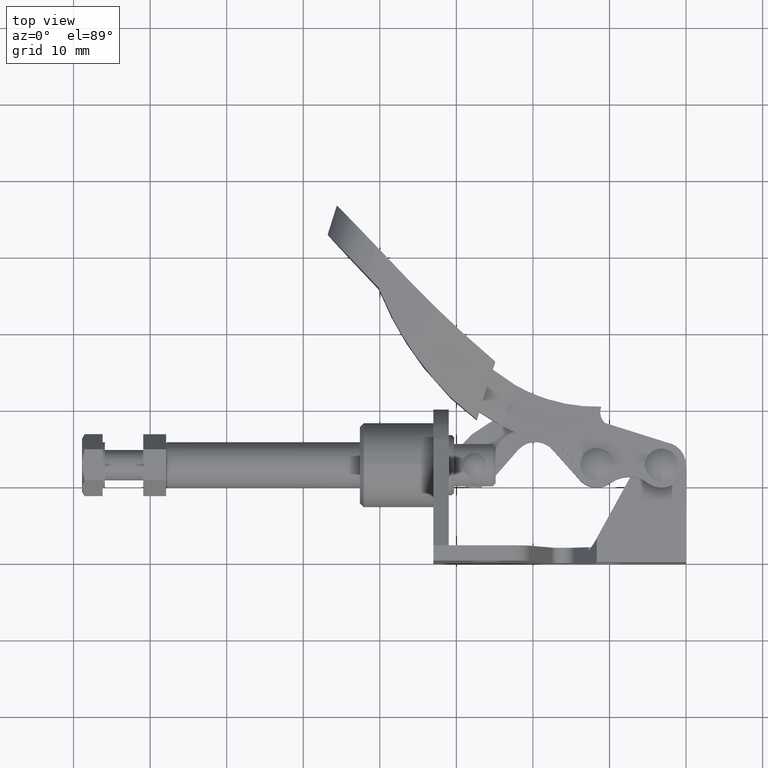
[diagram: clean part render]
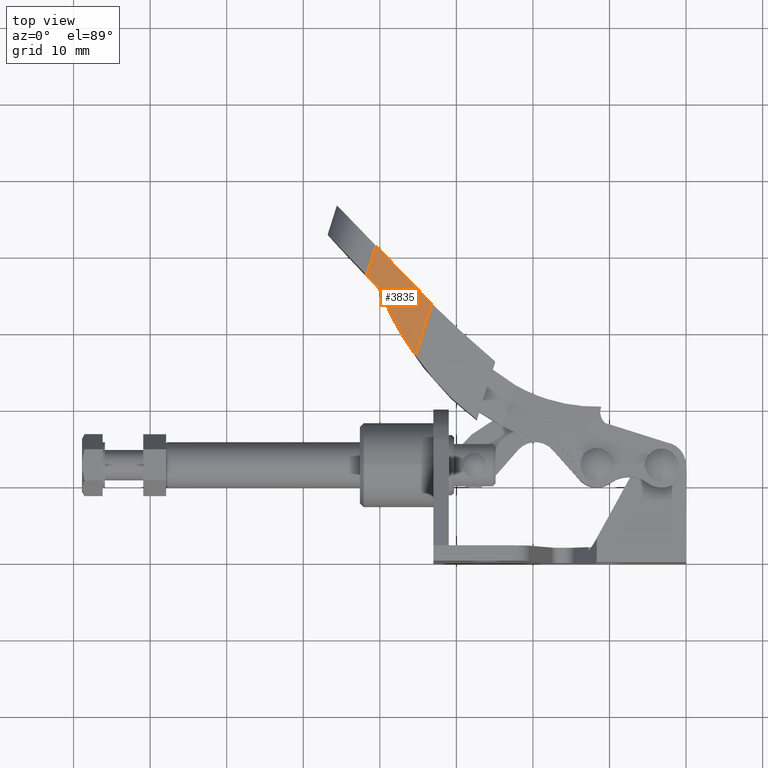
[diagram: same view with one face highlighted and labeled with its STEP entity id]
A machine part, top view. The second image highlights one B-rep face of the part: STEP entity #3835.
In plain terms, the highlighted cylindrical surface (partial cylindrical patch) has radius 37.1426 mm, axis along (-0.3013, -0.9535, 0).
Its self-contained STEP definition (entity closure, byte-faithful):
#19 = CARTESIAN_POINT ( 'NONE',  ( -35.37079412480319700, 26.96650444099761400, 19.46306685719837400 ) ) ;
#99 = LINE ( 'NONE', #3566, #5061 ) ;
#150 = CARTESIAN_POINT ( 'NONE',  ( -34.31292340123982100, 34.80102122091965800, 19.70117965312749700 ) ) ;
#212 = VECTOR ( 'NONE', #2900, 1000.000000000000100 ) ;
#246 = VERTEX_POINT ( 'NONE', #5701 ) ;
#366 = CARTESIAN_POINT ( 'NONE',  ( -38.80386492669234100, 32.66795272558430000, 20.01717198872511700 ) ) ;
#369 = CARTESIAN_POINT ( 'NONE',  ( -40.52068199773197700, 41.27287148287991400, 19.92197368837833300 ) ) ;
#525 = CARTESIAN_POINT ( 'NONE',  ( -36.44178130658674800, 36.99720775638491700, 19.94852212395586100 ) ) ;
#551 = VERTEX_POINT ( 'NONE', #525 ) ;
#685 = ORIENTED_EDGE ( 'NONE', *, *, #1565, .F. ) ;
#705 = EDGE_CURVE ( 'NONE', #1715, #2043, #3862, .T. ) ;
#1023 = ORIENTED_EDGE ( 'NONE', *, *, #6098, .T. ) ;
#1055 = CARTESIAN_POINT ( 'NONE',  ( -40.52068199773197700, 41.27287148287991400, 19.92197368837833300 ) ) ;
#1187 = ORIENTED_EDGE ( 'NONE', *, *, #705, .T. ) ;
#1333 = CARTESIAN_POINT ( 'NONE',  ( -37.80079755547497900, 38.42178190493012800, 20.06017077842766800 ) ) ;
#1565 = EDGE_CURVE ( 'NONE', #5680, #2043, #99, .T. ) ;
#1715 = VERTEX_POINT ( 'NONE', #2058 ) ;
#1827 = CARTESIAN_POINT ( 'NONE',  ( -39.51451672702515300, 34.18080328344691300, 20.03998643130406200 ) ) ;
#2043 = VERTEX_POINT ( 'NONE', #4187 ) ;
#2051 = CARTESIAN_POINT ( 'NONE',  ( -40.67050640056137900, 36.30730061991431500, 20.00489669683479100 ) ) ;
#2058 = CARTESIAN_POINT ( 'NONE',  ( -40.13759575758692200, 35.74401278312331000, 20.01854335822993400 ) ) ;
#2395 = EDGE_CURVE ( 'NONE', #551, #5680, #4888, .T. ) ;
#2409 = CARTESIAN_POINT ( 'NONE',  ( -36.33443538299737000, 28.32859202478089600, 19.69718223084503700 ) ) ;
#2616 = DIRECTION ( 'NONE',  ( -0.3013175797598634500, -0.9535238414049531700, 1.528815739737231000E-018 ) ) ;
#2745 = CYLINDRICAL_SURFACE ( 'NONE', #2852, 37.14258322130549300 ) ;
#2746 = DIRECTION ( 'NONE',  ( -0.3013175797598634500, -0.9535238414049532800, 1.528815739737231200E-018 ) ) ;
#2852 = AXIS2_PLACEMENT_3D ( 'NONE', #6108, #2746, #5637 ) ;
#2900 = DIRECTION ( 'NONE',  ( -0.3013175797598634500, -0.9535238414049531700, 1.528815739737231000E-018 ) ) ;
#3015 = CARTESIAN_POINT ( 'NONE',  ( -35.38336126540049500, 35.88773034564047700, 19.86156865775477300 ) ) ;
#3222 = CARTESIAN_POINT ( 'NONE',  ( -39.16263916631798700, 39.84931770871996500, 20.05130692833424900 ) ) ;
#3229 = EDGE_CURVE ( 'NONE', #4069, #551, #3507, .T. ) ;
#3335 = FACE_OUTER_BOUND ( 'NONE', #3410, .T. ) ;
#3410 = EDGE_LOOP ( 'NONE', ( #1023, #1187, #685, #5307, #4091, #5273 ) ) ;
#3428 = EDGE_CURVE ( 'NONE', #4069, #246, #5163, .T. ) ;
#3491 = CARTESIAN_POINT ( 'NONE',  ( -33.23132991934642900, 33.73686987855803900, 19.46306685719837400 ) ) ;
#3507 =( BOUNDED_CURVE ( )  B_SPLINE_CURVE ( 3, ( #369, #3222, #1333, #4694 ),
 .UNSPECIFIED., .F., .F. ) 
 B_SPLINE_CURVE_WITH_KNOTS ( ( 4, 4 ),
 ( 4.637504247402954000, 4.777018812815781800 ),
 .UNSPECIFIED. ) 
 CURVE ( )  GEOMETRIC_REPRESENTATION_ITEM ( )  RATIONAL_B_SPLINE_CURVE ( ( 1.000000000000000000, 0.9983786314720131100, 0.9983786314720131100, 1.000000000000000000 ) ) 
 REPRESENTATION_ITEM ( '' )  );
#3566 = CARTESIAN_POINT ( 'NONE',  ( -28.24673173493299300, 49.51070296340470400, 19.46306685719837400 ) ) ;
#3835 = ADVANCED_FACE ( 'NONE', ( #3335 ), #2745, .T. ) ;
#3862 = B_SPLINE_CURVE_WITH_KNOTS ( 'NONE', 3,
 ( #4647, #1827, #366, #5286, #2409, #19 ),
 .UNSPECIFIED., .F., .F.,
 ( 4, 2, 4 ),
 ( 0.0000000000000000000, 0.005001889759020933600, 0.01000377951804185900 ),
 .UNSPECIFIED. ) ;
#4069 = VERTEX_POINT ( 'NONE', #1055 ) ;
#4091 = ORIENTED_EDGE ( 'NONE', *, *, #3229, .F. ) ;
#4187 = CARTESIAN_POINT ( 'NONE',  ( -35.37079412480319700, 26.96650444099761400, 19.46306685719837400 ) ) ;
#4331 = CARTESIAN_POINT ( 'NONE',  ( -37.03946185799252800, 52.28924299053000600, 19.92197368837833300 ) ) ;
#4340 = CARTESIAN_POINT ( 'NONE',  ( -33.23132991934642900, 33.73686987855803900, 19.46306685719837400 ) ) ;
#4441 = CARTESIAN_POINT ( 'NONE',  ( -41.73444846059997100, 37.43188994717012700, 19.92197368837833300 ) ) ;
#4647 = CARTESIAN_POINT ( 'NONE',  ( -40.13759575758692200, 35.74401278312331000, 20.01854335822993400 ) ) ;
#4694 = CARTESIAN_POINT ( 'NONE',  ( -36.44178130658674800, 36.99720775638491700, 19.94852212395586100 ) ) ;
#4888 = B_SPLINE_CURVE_WITH_KNOTS ( 'NONE', 3,
 ( #5410, #3015, #150, #3491 ),
 .UNSPECIFIED., .F., .F.,
 ( 4, 4 ),
 ( 1.551583845779546600E-017, 0.004601355018192843600 ),
 .UNSPECIFIED. ) ;
#4940 = CARTESIAN_POINT ( 'NONE',  ( -41.20292365102386600, 36.87006693962846500, 19.97269876273389100 ) ) ;
#5061 = VECTOR ( 'NONE', #2616, 1000.000000000000100 ) ;
#5163 = LINE ( 'NONE', #4331, #212 ) ;
#5273 = ORIENTED_EDGE ( 'NONE', *, *, #3428, .T. ) ;
#5286 = CARTESIAN_POINT ( 'NONE',  ( -37.21383616447781200, 29.74184740122876700, 19.84566286579858400 ) ) ;
#5307 = ORIENTED_EDGE ( 'NONE', *, *, #2395, .F. ) ;
#5401 =( BOUNDED_CURVE ( )  B_SPLINE_CURVE ( 3, ( #4441, #4940, #2051, #5408 ),
 .UNSPECIFIED., .F., .F. ) 
 B_SPLINE_CURVE_WITH_KNOTS ( ( 4, 4 ),
 ( 4.637504247402954000, 4.692260065638950400 ),
 .UNSPECIFIED. ) 
 CURVE ( )  GEOMETRIC_REPRESENTATION_ITEM ( )  RATIONAL_B_SPLINE_CURVE ( ( 1.000000000000000000, 0.9997501656366374300, 0.9997501656366374300, 1.000000000000000000 ) ) 
 REPRESENTATION_ITEM ( '' )  );
#5408 = CARTESIAN_POINT ( 'NONE',  ( -40.13759575758692200, 35.74401278312331000, 20.01854335822993400 ) ) ;
#5410 = CARTESIAN_POINT ( 'NONE',  ( -36.44178130658674800, 36.99720775638491700, 19.94852212395586100 ) ) ;
#5637 = DIRECTION ( 'NONE',  ( -0.9535238414049531700, 0.3013175797598634500, 9.340887604078900100E-017 ) ) ;
#5680 = VERTEX_POINT ( 'NONE', #4340 ) ;
#5701 = CARTESIAN_POINT ( 'NONE',  ( -41.73444846059997100, 37.43188994717012700, 19.92197368837833300 ) ) ;
#6098 = EDGE_CURVE ( 'NONE', #246, #1715, #5401, .T. ) ;
#6108 = CARTESIAN_POINT ( 'NONE',  ( -34.38979684874247100, 51.45193760487205700, -17.11651552732144000 ) ) ;